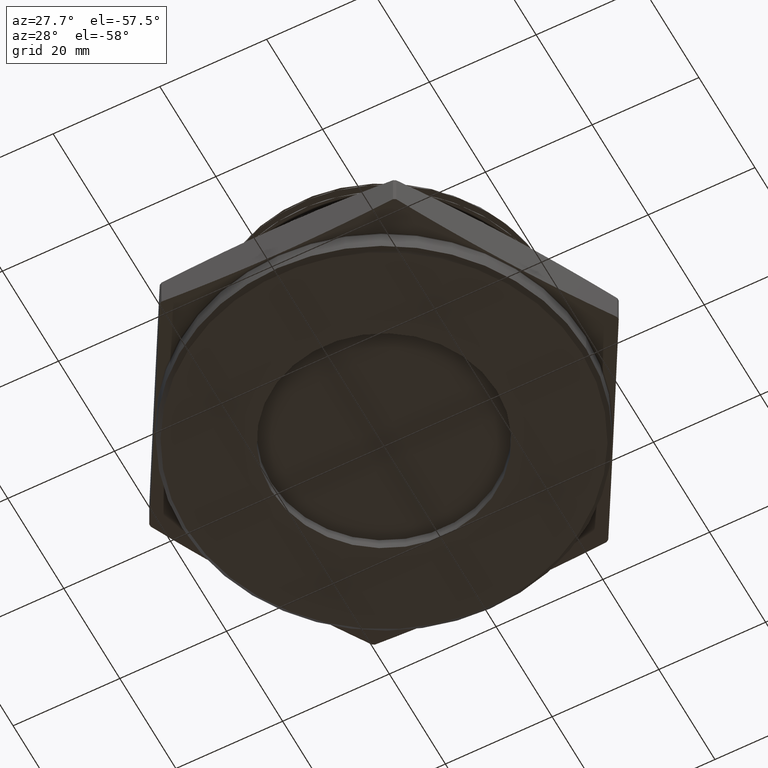
[diagram: clean part render]
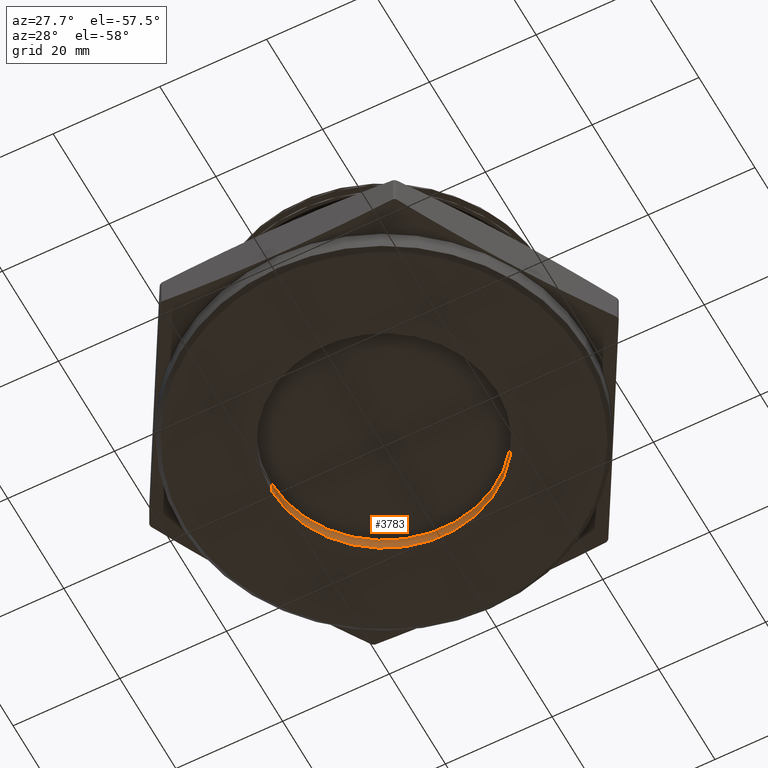
[diagram: same view with one face highlighted and labeled with its STEP entity id]
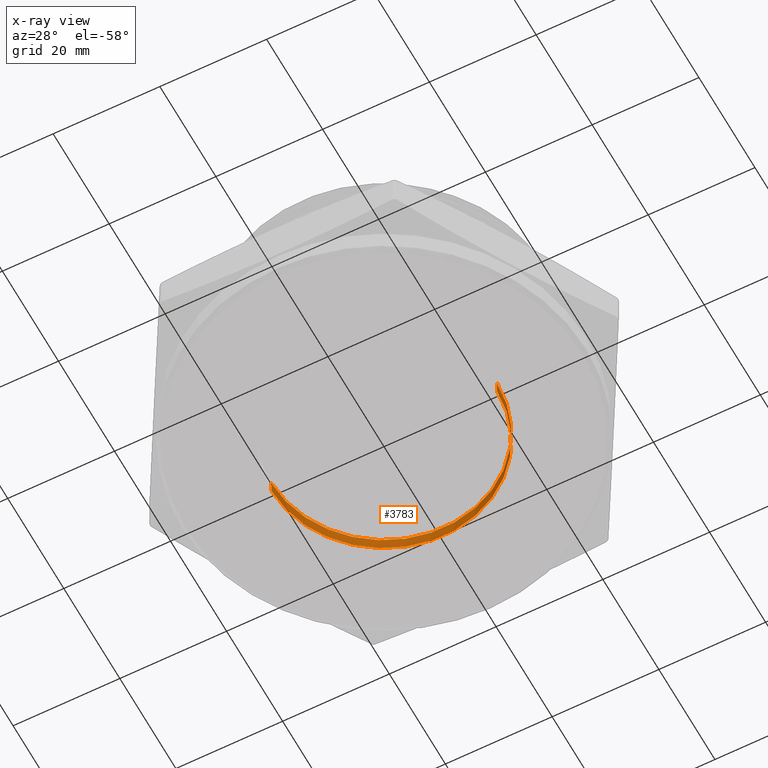
[diagram: x-ray of the same camera — body ghosted, the highlighted face saturated]
A machine part, auxiliary view. The second image highlights one B-rep face of the part: STEP entity #3783.
The next image is the same camera in x-ray: the body ghosted, the highlighted face saturated — about 0% of this face is hidden behind the body in this view.
In plain terms, the highlighted cylindrical surface (partial cylindrical patch) has radius 21.1328 mm, axis along (-0, -0, -1).
Its self-contained STEP definition (entity closure, byte-faithful):
#1413 = AXIS2_PLACEMENT_3D ( 'NONE', #3534, #3530, #3532 ) ;
#1434 = AXIS2_PLACEMENT_3D ( 'NONE', #2427, #2428, #2429 ) ;
#1437 = AXIS2_PLACEMENT_3D ( 'NONE', #2436, #2437, #2438 ) ;
#1605 = VERTEX_POINT ( 'NONE', #7059 ) ;
#1606 = VERTEX_POINT ( 'NONE', #7055 ) ;
#1614 = VERTEX_POINT ( 'NONE', #7047 ) ;
#1645 = VERTEX_POINT ( 'NONE', #7012 ) ;
#1661 = EDGE_LOOP ( 'NONE', ( #6840, #6839, #6838, #6837 ) ) ;
#2427 = CARTESIAN_POINT ( 'NONE',  ( 3.673940397442043000E-018, 0.0000000000000000000, -0.1800000000000000200 ) ) ;
#2428 = DIRECTION ( 'NONE',  ( -3.343854012755361800E-017, -0.0000000000000000000, -1.000000000000000000 ) ) ;
#2429 = DIRECTION ( 'NONE',  ( -1.000000000000000000, 0.0000000000000000000, 4.104338932788856500E-017 ) ) ;
#2436 = CARTESIAN_POINT ( 'NONE',  ( 6.884040249687191000E-018, 0.0000000000000000000, -0.08400000000000001900 ) ) ;
#2437 = DIRECTION ( 'NONE',  ( -3.343854012755361800E-017, -0.0000000000000000000, -1.000000000000000000 ) ) ;
#2438 = DIRECTION ( 'NONE',  ( -1.000000000000000000, 0.0000000000000000000, 4.104338932788856500E-017 ) ) ;
#3530 = DIRECTION ( 'NONE',  ( -3.343854012755361800E-017, -0.0000000000000000000, -1.000000000000000000 ) ) ;
#3532 = DIRECTION ( 'NONE',  ( -1.000000000000000000, 0.0000000000000000000, 4.104338932788856500E-017 ) ) ;
#3534 = CARTESIAN_POINT ( 'NONE',  ( 3.673940397442043800E-018, 0.0000000000000000000, -0.1799999999999999900 ) ) ;
#3783 = ADVANCED_FACE ( 'NONE', ( #7723 ), #7730, .F. ) ;
#3990 = EDGE_CURVE ( 'NONE', #1614, #1645, #7822, .T. ) ;
#3993 = EDGE_CURVE ( 'NONE', #1605, #1606, #7824, .T. ) ;
#4024 = EDGE_CURVE ( 'NONE', #1605, #1614, #7860, .T. ) ;
#4026 = EDGE_CURVE ( 'NONE', #1606, #1645, #7852, .T. ) ;
#6837 = ORIENTED_EDGE ( 'NONE', *, *, #3990, .T. ) ;
#6838 = ORIENTED_EDGE ( 'NONE', *, *, #4024, .T. ) ;
#6839 = ORIENTED_EDGE ( 'NONE', *, *, #3993, .F. ) ;
#6840 = ORIENTED_EDGE ( 'NONE', *, *, #4026, .F. ) ;
#7012 = CARTESIAN_POINT ( 'NONE',  ( 0.8320000000000000700, 1.018906136890598000E-016, -0.1800000000000000500 ) ) ;
#7047 = CARTESIAN_POINT ( 'NONE',  ( -0.8320000000000000700, 0.0000000000000000000, -0.1799999999999999900 ) ) ;
#7055 = CARTESIAN_POINT ( 'NONE',  ( 0.8320000000000000700, 1.018906136890598000E-016, -0.08400000000000004700 ) ) ;
#7059 = CARTESIAN_POINT ( 'NONE',  ( -0.8320000000000000700, 0.0000000000000000000, -0.08399999999999997700 ) ) ;
#7468 = DIRECTION ( 'NONE',  ( -3.343854012755361800E-017, -0.0000000000000000000, -1.000000000000000000 ) ) ;
#7499 = CARTESIAN_POINT ( 'NONE',  ( -0.8320000000000000700, 0.0000000000000000000, -0.1799999999999999700 ) ) ;
#7501 = DIRECTION ( 'NONE',  ( -3.343854012755361800E-017, -0.0000000000000000000, -1.000000000000000000 ) ) ;
#7507 = CARTESIAN_POINT ( 'NONE',  ( 0.8320000000000000700, 1.018906136890598000E-016, -0.1800000000000000200 ) ) ;
#7723 = FACE_OUTER_BOUND ( 'NONE', #1661, .T. ) ;
#7730 = CYLINDRICAL_SURFACE ( 'NONE', #1413, 0.8320000000000000700 ) ;
#7822 = CIRCLE ( 'NONE', #1434, 0.8320000000000000700 ) ;
#7824 = CIRCLE ( 'NONE', #1437, 0.8320000000000000700 ) ;
#7852 = LINE ( 'NONE', #7507, #7865 ) ;
#7860 = LINE ( 'NONE', #7499, #7862 ) ;
#7862 = VECTOR ( 'NONE', #7468, 39.37007874015748100 ) ;
#7865 = VECTOR ( 'NONE', #7501, 39.37007874015748100 ) ;